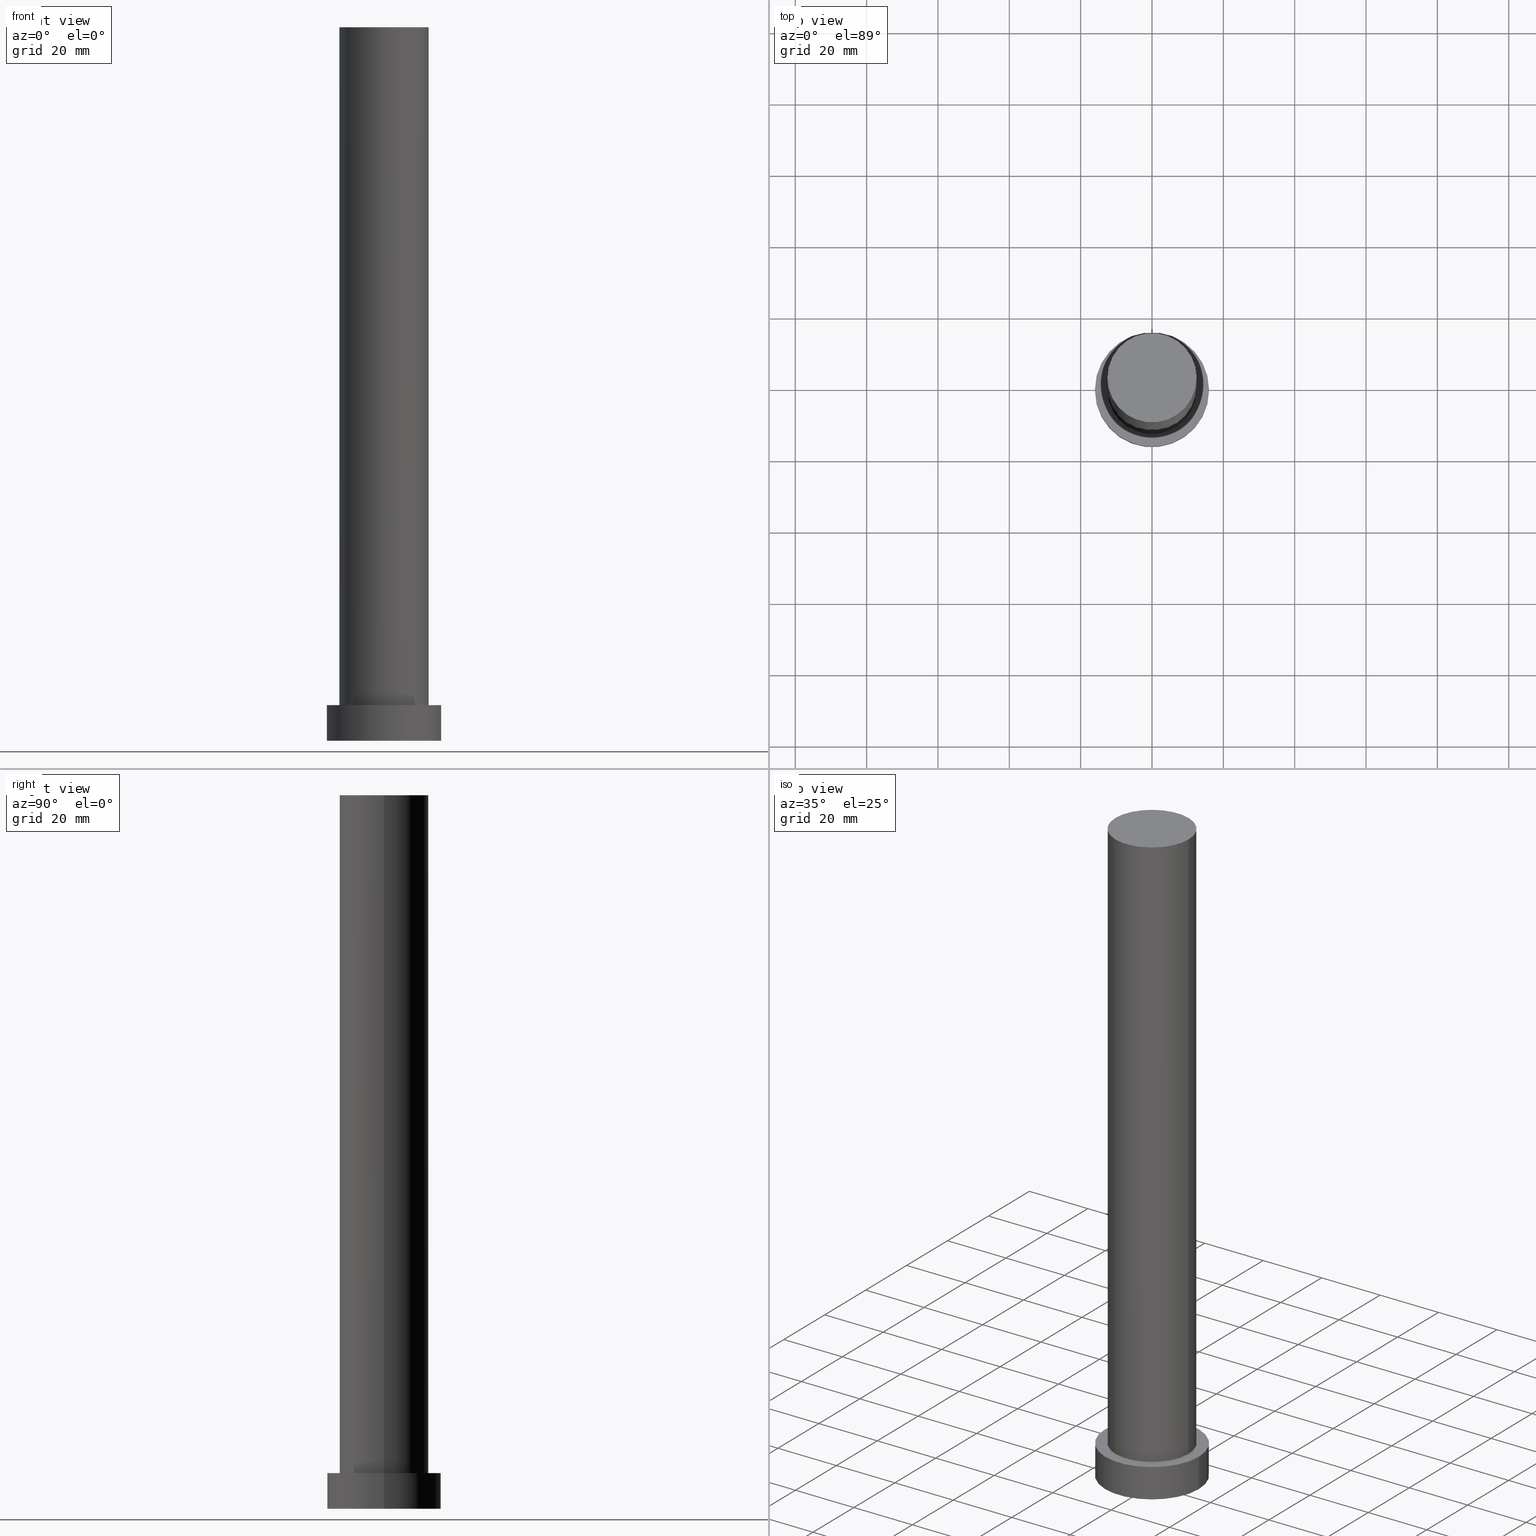
[diagram: canonical four-view strip — front | top / right | iso, engineering-drawing reading convention]
A machine part, canonical four-view strip (front | top / right | iso — engineering-drawing reading convention). The complete STEP part file that produces these views, byte-faithful:
ISO-10303-21;
HEADER;
FILE_DESCRIPTION (( 'STEP AP203' ),
    '1' );
FILE_NAME ('fe75.STEP',
    '2023-02-12T10:29:23',
    ( '' ),
    ( '' ),
    'SwSTEP 2.0',
    'SolidWorks 2019',
    '' );
FILE_SCHEMA (( 'CONFIG_CONTROL_DESIGN' ));
ENDSEC;

DATA;
#1 = CARTESIAN_POINT ( 'NONE',  ( 12.50000000000000000, 1.530808498934191521E-15, 10.00000000000000000 ) ) ;
#2 = VECTOR ( 'NONE', #176, 1000.000000000000000 ) ;
#3 = CC_DESIGN_PERSON_AND_ORGANIZATION_ASSIGNMENT ( #184, #86, ( #204 ) ) ;
#4 = CARTESIAN_POINT ( 'NONE',  ( -16.00000000000000000, 0.000000000000000000, 10.00000000000000000 ) ) ;
#5 = CARTESIAN_POINT ( 'NONE',  ( -12.50000000000000000, 0.000000000000000000, 10.00000000000000000 ) ) ;
#6 = DIRECTION ( 'NONE',  ( 0.000000000000000000, 0.000000000000000000, 1.000000000000000000 ) ) ;
#7 = FACE_OUTER_BOUND ( 'NONE', #67, .T. ) ;
#8 = CLOSED_SHELL ( 'NONE', ( #199, #96, #181, #230, #214, #60, #30 ) ) ;
#9 = PERSON_AND_ORGANIZATION ( #93, #182 ) ;
#10 = ORIENTED_EDGE ( 'NONE', *, *, #24, .T. ) ;
#11 = APPROVAL_STATUS ( 'not_yet_approved' ) ;
#12 = ORIENTED_EDGE ( 'NONE', *, *, #249, .F. ) ;
#13 = CARTESIAN_POINT ( 'NONE',  ( 0.000000000000000000, 0.000000000000000000, 0.000000000000000000 ) ) ;
#14 = DIRECTION ( 'NONE',  ( 0.000000000000000000, 0.000000000000000000, 1.000000000000000000 ) ) ;
#15 = ORIENTED_EDGE ( 'NONE', *, *, #24, .F. ) ;
#16 = EDGE_CURVE ( 'NONE', #166, #231, #238, .T. ) ;
#17 = DIRECTION ( 'NONE',  ( 0.000000000000000000, 0.000000000000000000, 1.000000000000000000 ) ) ;
#18 = VECTOR ( 'NONE', #54, 1000.000000000000000 ) ;
#19 = CARTESIAN_POINT ( 'NONE',  ( 0.000000000000000000, 0.000000000000000000, 10.00000000000000000 ) ) ;
#20 = CARTESIAN_POINT ( 'NONE',  ( 16.00000000000000000, 1.959434878635765131E-15, 0.000000000000000000 ) ) ;
#21 = CC_DESIGN_PERSON_AND_ORGANIZATION_ASSIGNMENT ( #109, #180, ( #163 ) ) ;
#22 = DIRECTION ( 'NONE',  ( 0.000000000000000000, 0.000000000000000000, 1.000000000000000000 ) ) ;
#23 = AXIS2_PLACEMENT_3D ( 'NONE', #158, #239, #81 ) ;
#24 = EDGE_CURVE ( 'NONE', #128, #110, #134, .T. ) ;
#25 = DATE_AND_TIME ( #250, #173 ) ;
#26 = PERSON_AND_ORGANIZATION ( #93, #182 ) ;
#27 = ORIENTED_EDGE ( 'NONE', *, *, #161, .F. ) ;
#28 = APPROVAL_PERSON_ORGANIZATION ( #146, #151, #169 ) ;
#29 = APPROVAL_STATUS ( 'not_yet_approved' ) ;
#30 = ADVANCED_FACE ( 'NONE', ( #168 ), #70, .T. ) ;
#31 = EDGE_LOOP ( 'NONE', ( #121, #205 ) ) ;
#32 = SHAPE_DEFINITION_REPRESENTATION ( #141, #209 ) ;
#33 = ORIENTED_EDGE ( 'NONE', *, *, #65, .T. ) ;
#34 = CARTESIAN_POINT ( 'NONE',  ( 0.000000000000000000, 0.000000000000000000, 200.0000000000000000 ) ) ;
#35 = ORIENTED_EDGE ( 'NONE', *, *, #171, .F. ) ;
#36 = CARTESIAN_POINT ( 'NONE',  ( -12.50000000000000000, 0.000000000000000000, 200.0000000000000000 ) ) ;
#37 = FACE_OUTER_BOUND ( 'NONE', #232, .T. ) ;
#38 = CYLINDRICAL_SURFACE ( 'NONE', #234, 16.00000000000000000 ) ;
#39 = DIRECTION ( 'NONE',  ( -1.000000000000000000, 0.000000000000000000, 0.000000000000000000 ) ) ;
#40 = AXIS2_PLACEMENT_3D ( 'NONE', #159, #136, #102 ) ;
#41 =( NAMED_UNIT ( * ) SI_UNIT ( $, .STERADIAN. ) SOLID_ANGLE_UNIT ( ) );
#42 = CARTESIAN_POINT ( 'NONE',  ( 0.000000000000000000, 0.000000000000000000, 200.0000000000000000 ) ) ;
#43 =( LENGTH_UNIT ( ) NAMED_UNIT ( * ) SI_UNIT ( .MILLI., .METRE. ) );
#44 = EDGE_CURVE ( 'NONE', #110, #128, #242, .T. ) ;
#45 = LINE ( 'NONE', #192, #61 ) ;
#46 = MECHANICAL_CONTEXT ( 'NONE', #206, 'mechanical' ) ;
#47 = EDGE_LOOP ( 'NONE', ( #208, #12 ) ) ;
#48 = ORIENTED_EDGE ( 'NONE', *, *, #80, .T. ) ;
#49 = LOCAL_TIME ( 11, 29, 23.00000000000000000, #126 ) ;
#50 = EDGE_LOOP ( 'NONE', ( #170, #253, #125, #64 ) ) ;
#51 = DATE_AND_TIME ( #107, #243 ) ;
#52 = CC_DESIGN_PERSON_AND_ORGANIZATION_ASSIGNMENT ( #120, #229, ( #55 ) ) ;
#53 = APPROVAL ( #11, 'NEUR�EN�' ) ;
#54 = DIRECTION ( 'NONE',  ( -0.000000000000000000, -0.000000000000000000, -1.000000000000000000 ) ) ;
#55 = SECURITY_CLASSIFICATION ( '', '', #186 ) ;
#56 = CARTESIAN_POINT ( 'NONE',  ( 0.000000000000000000, 0.000000000000000000, 0.000000000000000000 ) ) ;
#57 = AXIS2_PLACEMENT_3D ( 'NONE', #34, #147, #111 ) ;
#58 = DIRECTION ( 'NONE',  ( 1.000000000000000000, 0.000000000000000000, -0.000000000000000000 ) ) ;
#59 = DIRECTION ( 'NONE',  ( -1.000000000000000000, 0.000000000000000000, 0.000000000000000000 ) ) ;
#60 = ADVANCED_FACE ( 'NONE', ( #131 ), #94, .T. ) ;
#61 = VECTOR ( 'NONE', #241, 1000.000000000000000 ) ;
#62 = PLANE ( 'NONE',  #157 ) ;
#63 = APPLICATION_CONTEXT ( 'configuration controlled 3d designs of mechanical parts and assemblies' ) ;
#64 = ORIENTED_EDGE ( 'NONE', *, *, #171, .T. ) ;
#65 = EDGE_CURVE ( 'NONE', #128, #164, #95, .T. ) ;
#66 = APPROVAL_ROLE ( '' ) ;
#67 = EDGE_LOOP ( 'NONE', ( #35, #123 ) ) ;
#68 = DATE_AND_TIME ( #106, #49 ) ;
#69 = DIRECTION ( 'NONE',  ( 1.000000000000000000, 0.000000000000000000, 0.000000000000000000 ) ) ;
#70 = PLANE ( 'NONE',  #57 ) ;
#71 = APPROVAL_ROLE ( '' ) ;
#72 = DESIGN_CONTEXT ( 'detailed design', #63, 'design' ) ;
#73 = AXIS2_PLACEMENT_3D ( 'NONE', #189, #17, #235 ) ;
#74 = CIRCLE ( 'NONE', #255, 16.00000000000000000 ) ;
#75 = APPROVAL ( #252, 'NEUR�EN�' ) ;
#76 = CARTESIAN_POINT ( 'NONE',  ( 12.50000000000000000, 1.530808498934191521E-15, 200.0000000000000000 ) ) ;
#77 = FACE_OUTER_BOUND ( 'NONE', #91, .T. ) ;
#78 = PLANE ( 'NONE',  #227 ) ;
#79 = CARTESIAN_POINT ( 'NONE',  ( 0.000000000000000000, 0.000000000000000000, 10.00000000000000000 ) ) ;
#80 = EDGE_CURVE ( 'NONE', #164, #108, #105, .T. ) ;
#81 = DIRECTION ( 'NONE',  ( 1.000000000000000000, 0.000000000000000000, 0.000000000000000000 ) ) ;
#82 = DIRECTION ( 'NONE',  ( 0.000000000000000000, 0.000000000000000000, 1.000000000000000000 ) ) ;
#83 = CALENDAR_DATE ( 2023, 12, 2 ) ;
#84 = AXIS2_PLACEMENT_3D ( 'NONE', #13, #201, #69 ) ;
#85 = APPLICATION_PROTOCOL_DEFINITION ( 'international standard', 'config_control_design', 1994, #206 ) ;
#86 = PERSON_AND_ORGANIZATION_ROLE ( 'design_owner' ) ;
#87 = DIRECTION ( 'NONE',  ( 1.000000000000000000, 0.000000000000000000, 0.000000000000000000 ) ) ;
#88 = PERSON_AND_ORGANIZATION_ROLE ( 'creator' ) ;
#89 = AXIS2_PLACEMENT_3D ( 'NONE', #174, #213, #211 ) ;
#90 = DIRECTION ( 'NONE',  ( 1.000000000000000000, 0.000000000000000000, 0.000000000000000000 ) ) ;
#91 = EDGE_LOOP ( 'NONE', ( #245, #183, #203, #144 ) ) ;
#92 = DIRECTION ( 'NONE',  ( -1.000000000000000000, 0.000000000000000000, 0.000000000000000000 ) ) ;
#93 = PERSON ( 'NEUR�EN�', 'NEUR�EN�', 'NEUR�EN�', ('NEUR�EN�'), ('NEUR�EN�'), ('NEUR�EN�') ) ;
#94 = CYLINDRICAL_SURFACE ( 'NONE', #193, 12.50000000000000000 ) ;
#95 = LINE ( 'NONE', #36, #18 ) ;
#96 = ADVANCED_FACE ( 'NONE', ( #37 ), #38, .T. ) ;
#97 = CARTESIAN_POINT ( 'NONE',  ( 0.000000000000000000, 0.000000000000000000, 0.000000000000000000 ) ) ;
#98 = FACE_BOUND ( 'NONE', #47, .T. ) ;
#99 = CARTESIAN_POINT ( 'NONE',  ( 16.00000000000000000, 1.959434878635765131E-15, 10.00000000000000000 ) ) ;
#100 = CC_DESIGN_DATE_AND_TIME_ASSIGNMENT ( #226, #248, ( #103 ) ) ;
#101 = CC_DESIGN_APPROVAL ( #53, ( #55 ) ) ;
#102 = DIRECTION ( 'NONE',  ( 1.000000000000000000, 0.000000000000000000, 0.000000000000000000 ) ) ;
#103 = PRODUCT_DEFINITION ( 'NEZN�M�', '', #163, #72 ) ;
#104 = APPROVAL_DATE_TIME ( #25, #75 ) ;
#105 = CIRCLE ( 'NONE', #89, 12.50000000000000000 ) ;
#106 = CALENDAR_DATE ( 2023, 12, 2 ) ;
#107 = CALENDAR_DATE ( 2023, 12, 2 ) ;
#108 = VERTEX_POINT ( 'NONE', #1 ) ;
#109 = PERSON_AND_ORGANIZATION ( #93, #182 ) ;
#110 = VERTEX_POINT ( 'NONE', #76 ) ;
#111 = DIRECTION ( 'NONE',  ( 1.000000000000000000, 0.000000000000000000, -0.000000000000000000 ) ) ;
#112 = CC_DESIGN_PERSON_AND_ORGANIZATION_ASSIGNMENT ( #9, #224, ( #163 ) ) ;
#113 = DIRECTION ( 'NONE',  ( -1.000000000000000000, 0.000000000000000000, 0.000000000000000000 ) ) ;
#114 = DIRECTION ( 'NONE',  ( -0.000000000000000000, -0.000000000000000000, -1.000000000000000000 ) ) ;
#115 = CYLINDRICAL_SURFACE ( 'NONE', #145, 16.00000000000000000 ) ;
#116 = CC_DESIGN_APPROVAL ( #151, ( #103 ) ) ;
#117 = CARTESIAN_POINT ( 'NONE',  ( 16.00000000000000000, 1.959434878635765131E-15, 10.00000000000000000 ) ) ;
#118 = CARTESIAN_POINT ( 'NONE',  ( 0.000000000000000000, 0.000000000000000000, 10.00000000000000000 ) ) ;
#119 = APPLICATION_PROTOCOL_DEFINITION ( 'international standard', 'config_control_design', 1994, #63 ) ;
#120 = PERSON_AND_ORGANIZATION ( #93, #182 ) ;
#121 = ORIENTED_EDGE ( 'NONE', *, *, #217, .T. ) ;
#122 = COORDINATED_UNIVERSAL_TIME_OFFSET ( 1, 0, .AHEAD. ) ;
#123 = ORIENTED_EDGE ( 'NONE', *, *, #132, .F. ) ;
#124 = VECTOR ( 'NONE', #237, 1000.000000000000000 ) ;
#125 = ORIENTED_EDGE ( 'NONE', *, *, #191, .T. ) ;
#126 = COORDINATED_UNIVERSAL_TIME_OFFSET ( 1, 0, .AHEAD. ) ;
#127 = ORIENTED_EDGE ( 'NONE', *, *, #16, .F. ) ;
#128 = VERTEX_POINT ( 'NONE', #172 ) ;
#129 = CIRCLE ( 'NONE', #40, 12.50000000000000000 ) ;
#130 = MANIFOLD_SOLID_BREP ( 'P�idat vysunut�m3', #8 ) ;
#131 = FACE_OUTER_BOUND ( 'NONE', #185, .T. ) ;
#132 = EDGE_CURVE ( 'NONE', #225, #165, #156, .T. ) ;
#133 = DIRECTION ( 'NONE',  ( 1.000000000000000000, 0.000000000000000000, -0.000000000000000000 ) ) ;
#134 = CIRCLE ( 'NONE', #149, 12.50000000000000000 ) ;
#135 = CC_DESIGN_PERSON_AND_ORGANIZATION_ASSIGNMENT ( #142, #88, ( #103 ) ) ;
#136 = DIRECTION ( 'NONE',  ( 0.000000000000000000, 0.000000000000000000, 1.000000000000000000 ) ) ;
#137 =( GEOMETRIC_REPRESENTATION_CONTEXT ( 3 ) GLOBAL_UNCERTAINTY_ASSIGNED_CONTEXT ( ( #220 ) ) GLOBAL_UNIT_ASSIGNED_CONTEXT ( ( #43, #197, #41 ) ) REPRESENTATION_CONTEXT ( 'NONE', 'WORKASPACE' ) );
#138 = CARTESIAN_POINT ( 'NONE',  ( -16.00000000000000000, 0.000000000000000000, 10.00000000000000000 ) ) ;
#139 = LINE ( 'NONE', #4, #124 ) ;
#140 = CALENDAR_DATE ( 2023, 12, 2 ) ;
#141 = PRODUCT_DEFINITION_SHAPE ( 'NONE', 'NONE',  #103 ) ;
#142 = PERSON_AND_ORGANIZATION ( #93, #182 ) ;
#143 = APPROVAL_DATE_TIME ( #68, #53 ) ;
#144 = ORIENTED_EDGE ( 'NONE', *, *, #65, .F. ) ;
#145 = AXIS2_PLACEMENT_3D ( 'NONE', #79, #179, #39 ) ;
#146 = PERSON_AND_ORGANIZATION ( #93, #182 ) ;
#147 = DIRECTION ( 'NONE',  ( 0.000000000000000000, 0.000000000000000000, 1.000000000000000000 ) ) ;
#148 = ORIENTED_EDGE ( 'NONE', *, *, #191, .F. ) ;
#149 = AXIS2_PLACEMENT_3D ( 'NONE', #187, #14, #90 ) ;
#150 = AXIS2_PLACEMENT_3D ( 'NONE', #42, #218, #59 ) ;
#151 = APPROVAL ( #29, 'NEUR�EN�' ) ;
#152 = CARTESIAN_POINT ( 'NONE',  ( 0.000000000000000000, 0.000000000000000000, 200.0000000000000000 ) ) ;
#153 = CC_DESIGN_APPROVAL ( #75, ( #163 ) ) ;
#154 = EDGE_CURVE ( 'NONE', #166, #225, #219, .T. ) ;
#155 = CARTESIAN_POINT ( 'NONE',  ( 0.000000000000000000, 0.000000000000000000, 10.00000000000000000 ) ) ;
#156 = CIRCLE ( 'NONE', #175, 16.00000000000000000 ) ;
#157 = AXIS2_PLACEMENT_3D ( 'NONE', #56, #82, #133 ) ;
#158 = CARTESIAN_POINT ( 'NONE',  ( 0.000000000000000000, 0.000000000000000000, 0.000000000000000000 ) ) ;
#159 = CARTESIAN_POINT ( 'NONE',  ( 0.000000000000000000, 0.000000000000000000, 10.00000000000000000 ) ) ;
#160 = DIRECTION ( 'NONE',  ( 1.000000000000000000, 0.000000000000000000, 0.000000000000000000 ) ) ;
#161 = EDGE_CURVE ( 'NONE', #110, #108, #45, .T. ) ;
#162 = DATE_AND_TIME ( #83, #202 ) ;
#163 = PRODUCT_DEFINITION_FORMATION_WITH_SPECIFIED_SOURCE ( 'LIBOVOLN�', '', #204, .NOT_KNOWN. ) ;
#164 = VERTEX_POINT ( 'NONE', #5 ) ;
#165 = VERTEX_POINT ( 'NONE', #216 ) ;
#166 = VERTEX_POINT ( 'NONE', #99 ) ;
#167 = PERSON_AND_ORGANIZATION ( #93, #182 ) ;
#168 = FACE_OUTER_BOUND ( 'NONE', #228, .T. ) ;
#169 = APPROVAL_ROLE ( '' ) ;
#170 = ORIENTED_EDGE ( 'NONE', *, *, #154, .F. ) ;
#171 = EDGE_CURVE ( 'NONE', #165, #225, #194, .T. ) ;
#172 = CARTESIAN_POINT ( 'NONE',  ( -12.50000000000000000, 0.000000000000000000, 200.0000000000000000 ) ) ;
#173 = LOCAL_TIME ( 11, 29, 23.00000000000000000, #244 ) ;
#174 = CARTESIAN_POINT ( 'NONE',  ( 0.000000000000000000, 0.000000000000000000, 10.00000000000000000 ) ) ;
#175 = AXIS2_PLACEMENT_3D ( 'NONE', #97, #22, #160 ) ;
#176 = DIRECTION ( 'NONE',  ( -0.000000000000000000, -0.000000000000000000, -1.000000000000000000 ) ) ;
#177 = FACE_OUTER_BOUND ( 'NONE', #31, .T. ) ;
#178 = DIRECTION ( 'NONE',  ( 1.000000000000000000, 0.000000000000000000, 0.000000000000000000 ) ) ;
#179 = DIRECTION ( 'NONE',  ( -0.000000000000000000, -0.000000000000000000, -1.000000000000000000 ) ) ;
#180 = PERSON_AND_ORGANIZATION_ROLE ( 'design_supplier' ) ;
#181 = ADVANCED_FACE ( 'NONE', ( #240 ), #115, .T. ) ;
#182 = ORGANIZATION ( 'NEUR�EN�', 'NEUR�EN�', '' ) ;
#183 = ORIENTED_EDGE ( 'NONE', *, *, #161, .T. ) ;
#184 = PERSON_AND_ORGANIZATION ( #93, #182 ) ;
#185 = EDGE_LOOP ( 'NONE', ( #27, #15, #33, #48 ) ) ;
#186 = SECURITY_CLASSIFICATION_LEVEL ( 'unclassified' ) ;
#187 = CARTESIAN_POINT ( 'NONE',  ( 0.000000000000000000, 0.000000000000000000, 200.0000000000000000 ) ) ;
#188 = ORIENTED_EDGE ( 'NONE', *, *, #44, .T. ) ;
#189 = CARTESIAN_POINT ( 'NONE',  ( 0.000000000000000000, 0.000000000000000000, 200.0000000000000000 ) ) ;
#190 = APPROVAL_PERSON_ORGANIZATION ( #26, #53, #71 ) ;
#191 = EDGE_CURVE ( 'NONE', #231, #165, #139, .T. ) ;
#192 = CARTESIAN_POINT ( 'NONE',  ( 12.50000000000000000, 1.530808498934191521E-15, 200.0000000000000000 ) ) ;
#193 = AXIS2_PLACEMENT_3D ( 'NONE', #152, #210, #113 ) ;
#194 = CIRCLE ( 'NONE', #23, 16.00000000000000000 ) ;
#195 = DIRECTION ( 'NONE',  ( 0.000000000000000000, 0.000000000000000000, 1.000000000000000000 ) ) ;
#196 = CC_DESIGN_SECURITY_CLASSIFICATION ( #55, ( #163 ) ) ;
#197 =( NAMED_UNIT ( * ) PLANE_ANGLE_UNIT ( ) SI_UNIT ( $, .RADIAN. ) );
#198 = APPROVAL_DATE_TIME ( #162, #151 ) ;
#199 = ADVANCED_FACE ( 'NONE', ( #77 ), #215, .T. ) ;
#200 = DATE_TIME_ROLE ( 'classification_date' ) ;
#201 = DIRECTION ( 'NONE',  ( 0.000000000000000000, 0.000000000000000000, 1.000000000000000000 ) ) ;
#202 = LOCAL_TIME ( 11, 29, 23.00000000000000000, #246 ) ;
#203 = ORIENTED_EDGE ( 'NONE', *, *, #249, .T. ) ;
#204 = PRODUCT ( 'fe75', 'fe75', '', ( #46 ) ) ;
#205 = ORIENTED_EDGE ( 'NONE', *, *, #16, .T. ) ;
#206 = APPLICATION_CONTEXT ( 'configuration controlled 3d designs of mechanical parts and assemblies' ) ;
#207 = CARTESIAN_POINT ( 'NONE',  ( 0.000000000000000000, 0.000000000000000000, 10.00000000000000000 ) ) ;
#208 = ORIENTED_EDGE ( 'NONE', *, *, #80, .F. ) ;
#209 = ADVANCED_BREP_SHAPE_REPRESENTATION ( 'fe75', ( #130, #84 ), #137 ) ;
#210 = DIRECTION ( 'NONE',  ( -0.000000000000000000, -0.000000000000000000, -1.000000000000000000 ) ) ;
#211 = DIRECTION ( 'NONE',  ( 1.000000000000000000, 0.000000000000000000, 0.000000000000000000 ) ) ;
#212 = APPROVAL_PERSON_ORGANIZATION ( #167, #75, #66 ) ;
#213 = DIRECTION ( 'NONE',  ( 0.000000000000000000, 0.000000000000000000, 1.000000000000000000 ) ) ;
#214 = ADVANCED_FACE ( 'NONE', ( #7 ), #62, .F. ) ;
#215 = CYLINDRICAL_SURFACE ( 'NONE', #150, 12.50000000000000000 ) ;
#216 = CARTESIAN_POINT ( 'NONE',  ( -16.00000000000000000, 0.000000000000000000, 0.000000000000000000 ) ) ;
#217 = EDGE_CURVE ( 'NONE', #231, #166, #74, .T. ) ;
#218 = DIRECTION ( 'NONE',  ( -0.000000000000000000, -0.000000000000000000, -1.000000000000000000 ) ) ;
#219 = LINE ( 'NONE', #117, #2 ) ;
#220 = UNCERTAINTY_MEASURE_WITH_UNIT (LENGTH_MEASURE( 1.000000000000000082E-05 ), #43, 'distance_accuracy_value', 'NONE');
#221 = PRODUCT_RELATED_PRODUCT_CATEGORY ( 'detail', '', ( #204 ) ) ;
#222 = COORDINATED_UNIVERSAL_TIME_OFFSET ( 1, 0, .AHEAD. ) ;
#223 = ORIENTED_EDGE ( 'NONE', *, *, #132, .T. ) ;
#224 = PERSON_AND_ORGANIZATION_ROLE ( 'creator' ) ;
#225 = VERTEX_POINT ( 'NONE', #20 ) ;
#226 = DATE_AND_TIME ( #140, #233 ) ;
#227 = AXIS2_PLACEMENT_3D ( 'NONE', #155, #6, #58 ) ;
#228 = EDGE_LOOP ( 'NONE', ( #10, #188 ) ) ;
#229 = PERSON_AND_ORGANIZATION_ROLE ( 'classification_officer' ) ;
#230 = ADVANCED_FACE ( 'NONE', ( #98, #177 ), #78, .T. ) ;
#231 = VERTEX_POINT ( 'NONE', #138 ) ;
#232 = EDGE_LOOP ( 'NONE', ( #127, #247, #223, #148 ) ) ;
#233 = LOCAL_TIME ( 11, 29, 23.00000000000000000, #222 ) ;
#234 = AXIS2_PLACEMENT_3D ( 'NONE', #19, #114, #92 ) ;
#235 = DIRECTION ( 'NONE',  ( 1.000000000000000000, 0.000000000000000000, 0.000000000000000000 ) ) ;
#236 = CC_DESIGN_DATE_AND_TIME_ASSIGNMENT ( #51, #200, ( #55 ) ) ;
#237 = DIRECTION ( 'NONE',  ( -0.000000000000000000, -0.000000000000000000, -1.000000000000000000 ) ) ;
#238 = CIRCLE ( 'NONE', #254, 16.00000000000000000 ) ;
#239 = DIRECTION ( 'NONE',  ( 0.000000000000000000, 0.000000000000000000, 1.000000000000000000 ) ) ;
#240 = FACE_OUTER_BOUND ( 'NONE', #50, .T. ) ;
#241 = DIRECTION ( 'NONE',  ( -0.000000000000000000, -0.000000000000000000, -1.000000000000000000 ) ) ;
#242 = CIRCLE ( 'NONE', #73, 12.50000000000000000 ) ;
#243 = LOCAL_TIME ( 11, 29, 23.00000000000000000, #122 ) ;
#244 = COORDINATED_UNIVERSAL_TIME_OFFSET ( 1, 0, .AHEAD. ) ;
#245 = ORIENTED_EDGE ( 'NONE', *, *, #44, .F. ) ;
#246 = COORDINATED_UNIVERSAL_TIME_OFFSET ( 1, 0, .AHEAD. ) ;
#247 = ORIENTED_EDGE ( 'NONE', *, *, #154, .T. ) ;
#248 = DATE_TIME_ROLE ( 'creation_date' ) ;
#249 = EDGE_CURVE ( 'NONE', #108, #164, #129, .T. ) ;
#250 = CALENDAR_DATE ( 2023, 12, 2 ) ;
#251 = DIRECTION ( 'NONE',  ( 0.000000000000000000, 0.000000000000000000, 1.000000000000000000 ) ) ;
#252 = APPROVAL_STATUS ( 'not_yet_approved' ) ;
#253 = ORIENTED_EDGE ( 'NONE', *, *, #217, .F. ) ;
#254 = AXIS2_PLACEMENT_3D ( 'NONE', #207, #251, #87 ) ;
#255 = AXIS2_PLACEMENT_3D ( 'NONE', #118, #195, #178 ) ;
ENDSEC;
END-ISO-10303-21;
